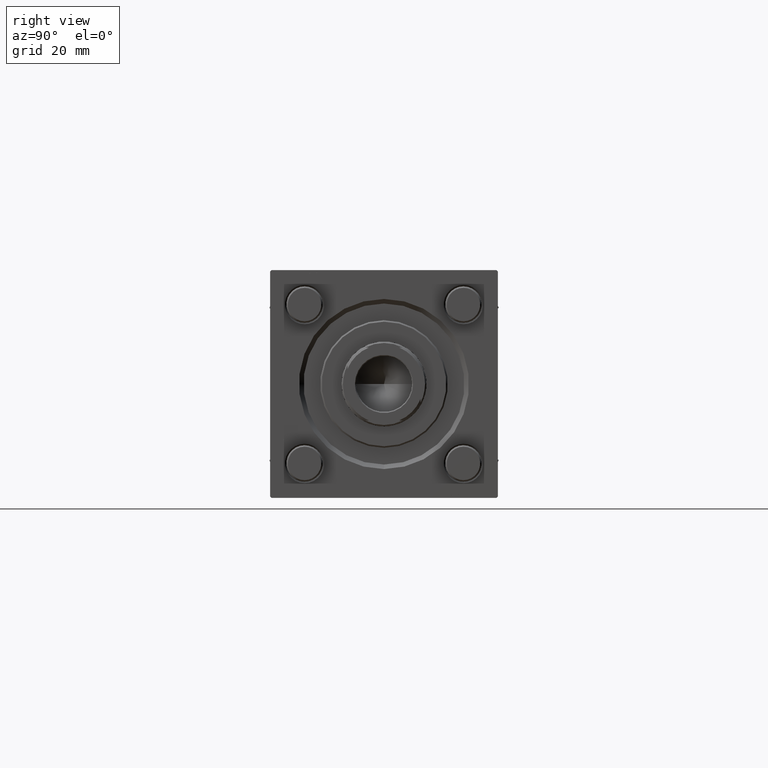
[diagram: clean part render]
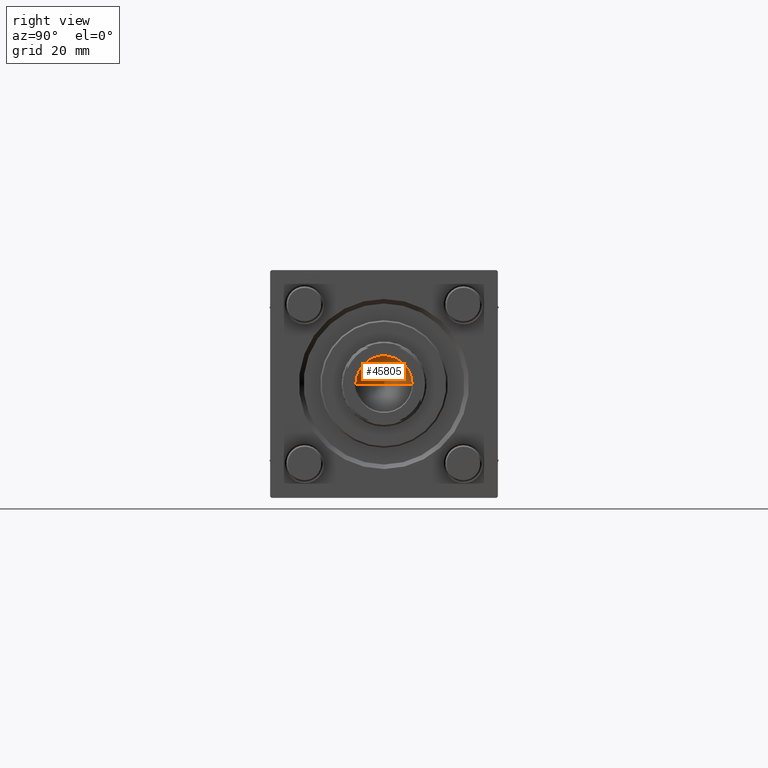
[diagram: same view with one face highlighted and labeled with its STEP entity id]
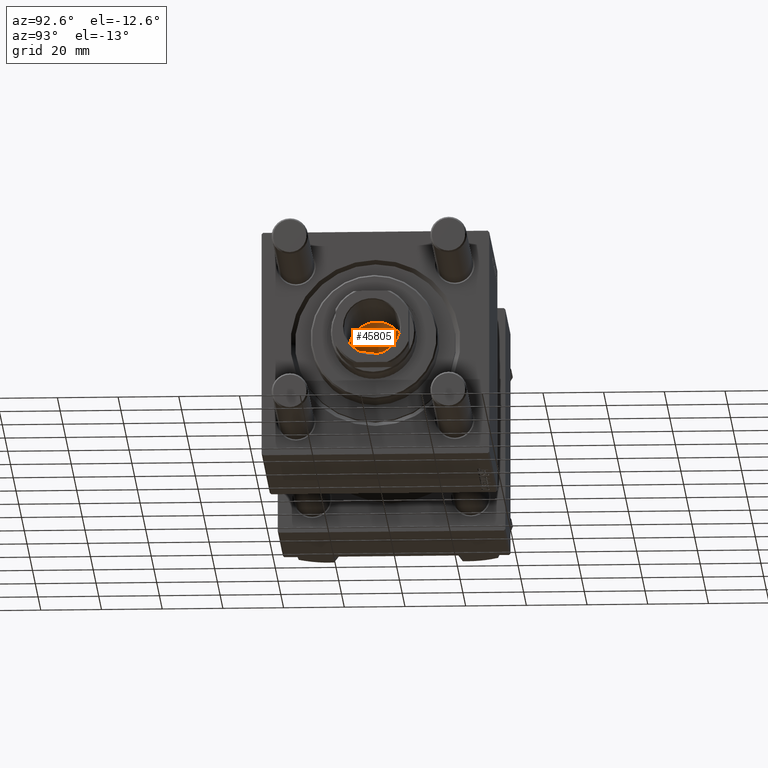
[diagram: same view with one face highlighted and labeled with its STEP entity id]
A machine part, right view. The second image highlights one B-rep face of the part: STEP entity #45805.
A second angle (auxiliary view) of the same face is appended — the face is thin or edge-on in the first view.
In plain terms, the highlighted conical surface has half-angle 59 deg.
Its self-contained STEP definition (entity closure, byte-faithful):
#2353 = DIRECTION ( 'NONE',  ( -0.000000000000000000, -0.000000000000000000, 1.000000000000000000 ) ) ;
#5985 = LINE ( 'NONE', #27776, #32163 ) ;
#6818 = EDGE_CURVE ( 'NONE', #47242, #33491, #53688, .T. ) ;
#11551 = AXIS2_PLACEMENT_3D ( 'NONE', #18210, #13908, #24885 ) ;
#13863 = VECTOR ( 'NONE', #40929, 1000.000000000000000 ) ;
#13908 = DIRECTION ( 'NONE',  ( -0.000000000000000000, -0.000000000000000000, 1.000000000000000000 ) ) ;
#17387 = ORIENTED_EDGE ( 'NONE', *, *, #46414, .T. ) ;
#18210 = CARTESIAN_POINT ( 'NONE',  ( 0.000000000000000000, 0.000000000000000000, 107.0000000000000142 ) ) ;
#18710 = CARTESIAN_POINT ( 'NONE',  ( 9.249999999999992895, 0.000000000000000000, 107.0000000000000142 ) ) ;
#19431 = ORIENTED_EDGE ( 'NONE', *, *, #6818, .T. ) ;
#22077 = AXIS2_PLACEMENT_3D ( 'NONE', #54547, #2353, #32734 ) ;
#22867 = CARTESIAN_POINT ( 'NONE',  ( -9.769621978240258809E-15, 0.000000000000000000, 101.4420392739950785 ) ) ;
#24885 = DIRECTION ( 'NONE',  ( 1.000000000000000000, 0.000000000000000000, 0.000000000000000000 ) ) ;
#27176 = CARTESIAN_POINT ( 'NONE',  ( -9.249999999999992895, 1.132798289211300712E-15, 107.0000000000000142 ) ) ;
#27776 = CARTESIAN_POINT ( 'NONE',  ( 9.249999999999992895, 0.000000000000000000, 107.0000000000000142 ) ) ;
#27874 = FACE_OUTER_BOUND ( 'NONE', #32224, .T. ) ;
#28757 = EDGE_CURVE ( 'NONE', #44028, #33491, #5985, .T. ) ;
#31507 = DIRECTION ( 'NONE',  ( 0.8571673007021117785, 0.000000000000000000, 0.5150380749100550437 ) ) ;
#32163 = VECTOR ( 'NONE', #31507, 1000.000000000000000 ) ;
#32224 = EDGE_LOOP ( 'NONE', ( #53945, #17387, #19431 ) ) ;
#32734 = DIRECTION ( 'NONE',  ( 1.000000000000000000, 0.000000000000000000, 0.000000000000000000 ) ) ;
#33491 = VERTEX_POINT ( 'NONE', #18710 ) ;
#36341 = CARTESIAN_POINT ( 'NONE',  ( -9.249999999999992895, 1.132798289211300712E-15, 107.0000000000000142 ) ) ;
#40929 = DIRECTION ( 'NONE',  ( -0.8571673007021117785, 1.049727191138617956E-16, 0.5150380749100550437 ) ) ;
#44028 = VERTEX_POINT ( 'NONE', #22867 ) ;
#44389 = LINE ( 'NONE', #36341, #13863 ) ;
#45805 = ADVANCED_FACE ( 'NONE', ( #27874 ), #55975, .F. ) ;
#46414 = EDGE_CURVE ( 'NONE', #44028, #47242, #44389, .T. ) ;
#47242 = VERTEX_POINT ( 'NONE', #27176 ) ;
#53688 = CIRCLE ( 'NONE', #11551, 9.249999999999992895 ) ;
#53945 = ORIENTED_EDGE ( 'NONE', *, *, #28757, .F. ) ;
#54547 = CARTESIAN_POINT ( 'NONE',  ( 0.000000000000000000, 0.000000000000000000, 107.0000000000000142 ) ) ;
#55975 = CONICAL_SURFACE ( 'NONE', #22077, 9.249999999999992895, 1.029744258676653423 ) ;